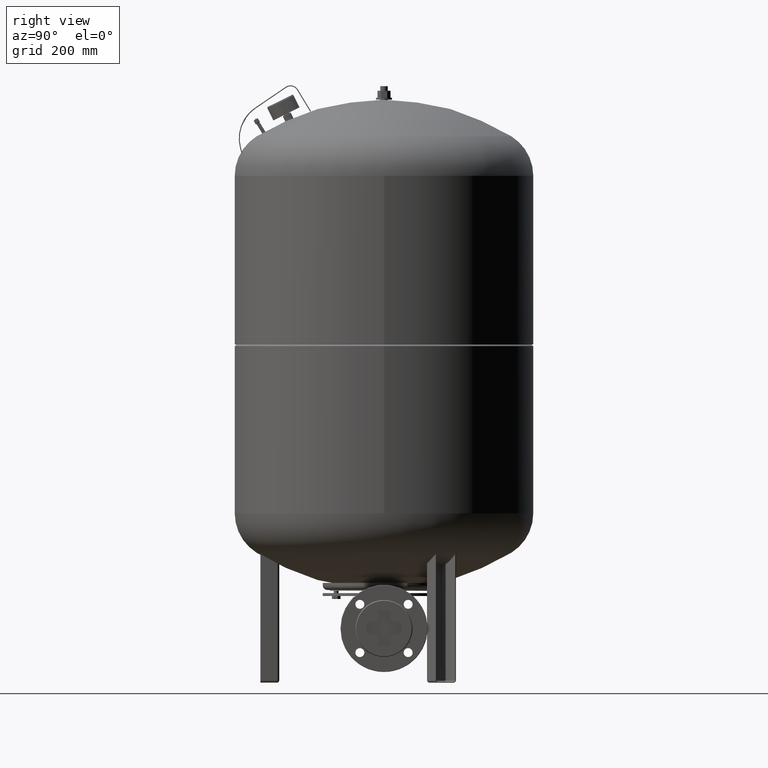
[diagram: clean part render]
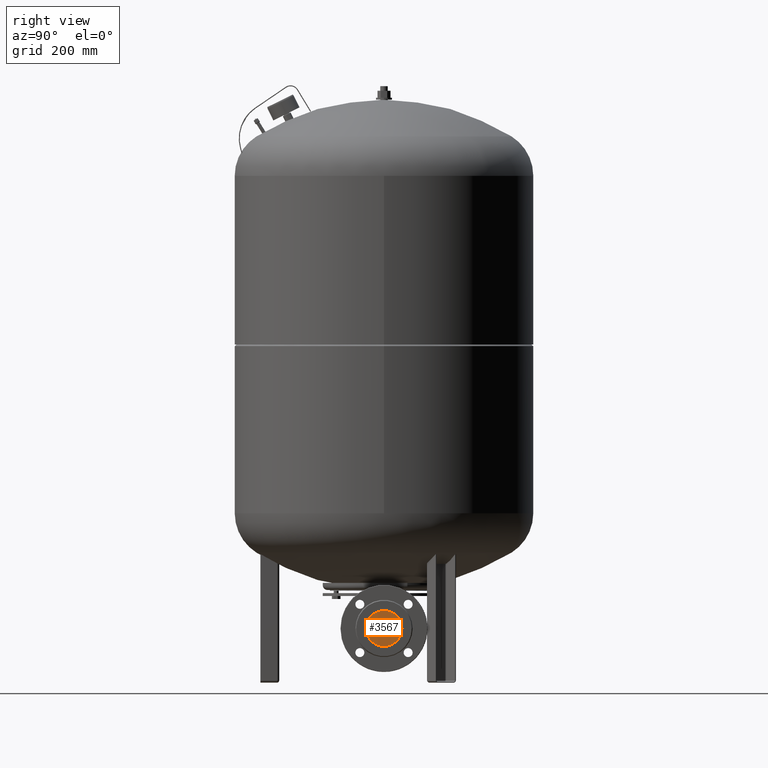
[diagram: same view with one face highlighted and labeled with its STEP entity id]
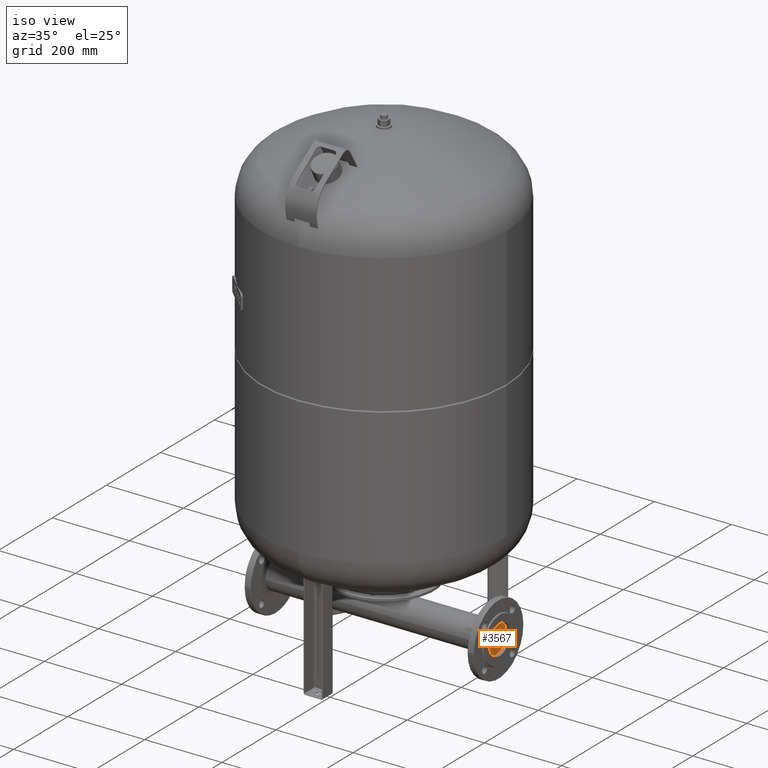
[diagram: same view with one face highlighted and labeled with its STEP entity id]
A machine part, right view. The second image highlights one B-rep face of the part: STEP entity #3567.
A second angle (iso view) of the same face is appended — the face is thin or edge-on in the first view.
In plain terms, the highlighted face is a freeform B-spline surface patch.
Its self-contained STEP definition (entity closure, byte-faithful):
#3342=CARTESIAN_POINT('',(290.0,-38.049999999999997,115.000000000000010));
#3343=VERTEX_POINT('',#3342);
#3359=CARTESIAN_POINT('',(290.0,38.049999999999997,115.000000000000010));
#3360=VERTEX_POINT('',#3359);
#3367=CARTESIAN_POINT('',(290.0,0.0,115.000000000000010));
#3368=DIRECTION('',(-1.0,0.0,0.0));
#3369=DIRECTION('',(0.0,-1.0,0.0));
#3370=AXIS2_PLACEMENT_3D('',#3367,#3368,#3369);
#3371=CIRCLE('',#3370,38.049999999999997);
#3372=EDGE_CURVE('',#3360,#3343,#3371,.T.);
#3552=CARTESIAN_POINT('',(290.0,38.049999999999997,153.050000000000010));
#3553=CARTESIAN_POINT('',(290.0,-38.049999999999997,153.050000000000010));
#3554=CARTESIAN_POINT('',(290.0,38.049999999999997,76.950000000000017));
#3555=CARTESIAN_POINT('',(290.0,-38.049999999999997,76.950000000000017));
#3556=B_SPLINE_SURFACE_WITH_KNOTS('',1,1,((#3552,#3554),(#3553,#3555)),.UNSPECIFIED.,.F.,.F.,.U.,(2,2),(2,2),(0.0,76.099999999999994),(0.0,76.099999999999994),.UNSPECIFIED.);
#3557=CARTESIAN_POINT('',(290.0,0.0,115.000000000000010));
#3558=DIRECTION('',(-1.0,0.0,0.0));
#3559=DIRECTION('',(0.0,-1.0,0.0));
#3560=AXIS2_PLACEMENT_3D('',#3557,#3558,#3559);
#3561=CIRCLE('',#3560,38.049999999999997);
#3562=EDGE_CURVE('',#3343,#3360,#3561,.T.);
#3563=ORIENTED_EDGE('',*,*,#3562,.F.);
#3564=ORIENTED_EDGE('',*,*,#3372,.F.);
#3565=EDGE_LOOP('',(#3563,#3564));
#3566=FACE_OUTER_BOUND('',#3565,.T.);
#3567=ADVANCED_FACE('',(#3566),#3556,.T.);